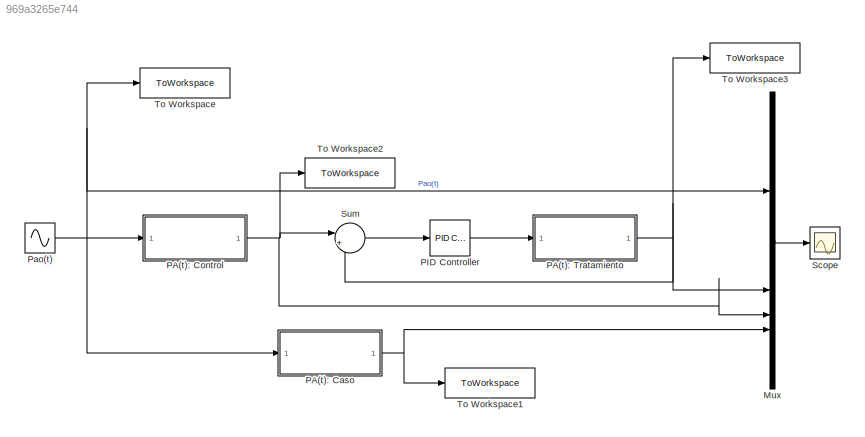
MODEL slx_969a3265e744
KIND model
CONFIG AbsTol = auto
CONFIG EnableMultiTasking = off
CONFIG FixedStep = auto
CONFIG MaxStep = auto
CONFIG MinStep = auto
CONFIG RelTol = 1e-3
CONFIG SampleTimeConstraint = Unconstrained
CONFIG SolverName = VariableStepAuto
CONFIG StartTime = 0.0
CONFIG StopTime = 10
BLOCK [Mux] Mux
  DisplayOption = bar
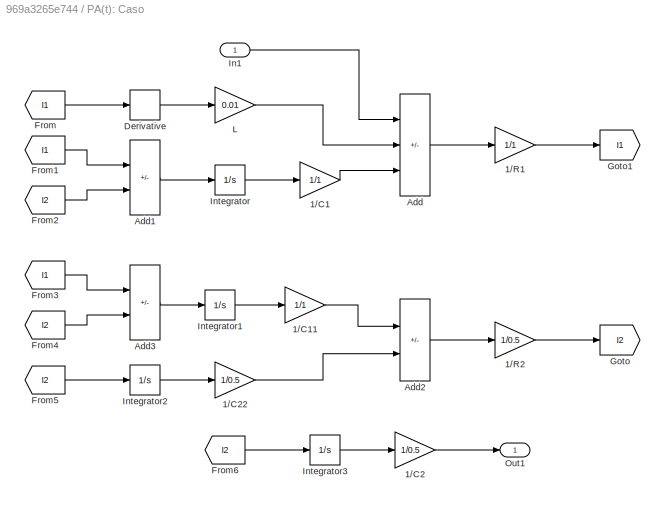
BLOCK [SubSystem] PA(t): Caso
BLOCK [Gain] PA(t): Caso/1//C1
  Gain = 1/1
BLOCK [Gain] PA(t): Caso/1//C11
  Gain = 1/1
BLOCK [Gain] PA(t): Caso/1//C2
  Gain = 1/0.5
BLOCK [Gain] PA(t): Caso/1//C22
  Gain = 1/0.5
BLOCK [Gain] PA(t): Caso/1//R1
  Gain = 1/1
BLOCK [Gain] PA(t): Caso/1//R2
  Gain = 1/0.5
BLOCK [Sum] PA(t): Caso/Add
  IconShape = rectangular
  Inputs = +--
BLOCK [Sum] PA(t): Caso/Add1
  IconShape = rectangular
  Inputs = +-
BLOCK [Sum] PA(t): Caso/Add2
  IconShape = rectangular
  Inputs = +-
BLOCK [Sum] PA(t): Caso/Add3
  IconShape = rectangular
  Inputs = +-
BLOCK [Derivative] PA(t): Caso/Derivative
BLOCK [From] PA(t): Caso/From
  GotoTag = I1
BLOCK [From] PA(t): Caso/From1
  GotoTag = I1
BLOCK [From] PA(t): Caso/From2
  GotoTag = I2
BLOCK [From] PA(t): Caso/From3
  GotoTag = I1
BLOCK [From] PA(t): Caso/From4
  GotoTag = I2
BLOCK [From] PA(t): Caso/From5
  GotoTag = I2
BLOCK [From] PA(t): Caso/From6
  GotoTag = I2
BLOCK [Goto] PA(t): Caso/Goto
  GotoTag = I2
BLOCK [Goto] PA(t): Caso/Goto1
  GotoTag = I1
BLOCK [Inport] PA(t): Caso/In1
BLOCK [Integrator] PA(t): Caso/Integrator
BLOCK [Integrator] PA(t): Caso/Integrator1
BLOCK [Integrator] PA(t): Caso/Integrator2
BLOCK [Integrator] PA(t): Caso/Integrator3
BLOCK [Gain] PA(t): Caso/L
  Gain = 0.01
BLOCK [Outport] PA(t): Caso/Out1
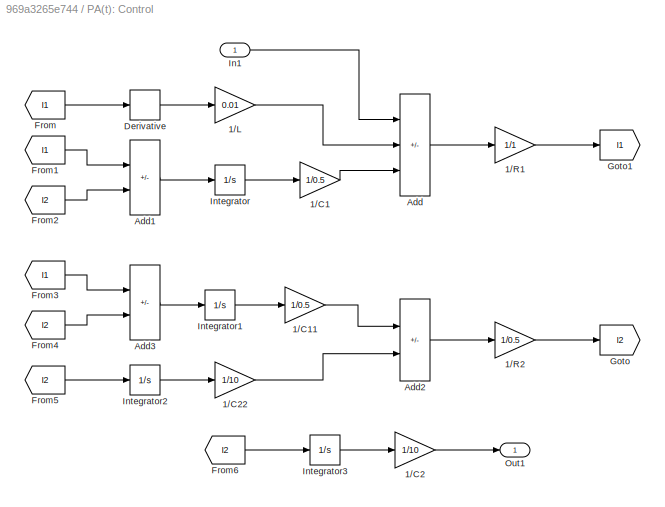
BLOCK [SubSystem] PA(t): Control
BLOCK [Gain] PA(t): Control/1//C1
  Gain = 1/0.5
BLOCK [Gain] PA(t): Control/1//C11
  Gain = 1/0.5
BLOCK [Gain] PA(t): Control/1//C2
  Gain = 1/10
BLOCK [Gain] PA(t): Control/1//C22
  Gain = 1/10
BLOCK [Gain] PA(t): Control/1//L
  Gain = 0.01
BLOCK [Gain] PA(t): Control/1//R1
  Gain = 1/1
BLOCK [Gain] PA(t): Control/1//R2
  Gain = 1/0.5
BLOCK [Sum] PA(t): Control/Add
  IconShape = rectangular
  Inputs = +--
BLOCK [Sum] PA(t): Control/Add1
  IconShape = rectangular
  Inputs = +-
BLOCK [Sum] PA(t): Control/Add2
  IconShape = rectangular
  Inputs = +-
BLOCK [Sum] PA(t): Control/Add3
  IconShape = rectangular
  Inputs = +-
BLOCK [Derivative] PA(t): Control/Derivative
BLOCK [From] PA(t): Control/From
  GotoTag = I1
BLOCK [From] PA(t): Control/From1
  GotoTag = I1
BLOCK [From] PA(t): Control/From2
  GotoTag = I2
BLOCK [From] PA(t): Control/From3
  GotoTag = I1
BLOCK [From] PA(t): Control/From4
  GotoTag = I2
BLOCK [From] PA(t): Control/From5
  GotoTag = I2
BLOCK [From] PA(t): Control/From6
  GotoTag = I2
BLOCK [Goto] PA(t): Control/Goto
  GotoTag = I2
BLOCK [Goto] PA(t): Control/Goto1
  GotoTag = I1
BLOCK [Inport] PA(t): Control/In1
BLOCK [Integrator] PA(t): Control/Integrator
BLOCK [Integrator] PA(t): Control/Integrator1
BLOCK [Integrator] PA(t): Control/Integrator2
BLOCK [Integrator] PA(t): Control/Integrator3
BLOCK [Outport] PA(t): Control/Out1
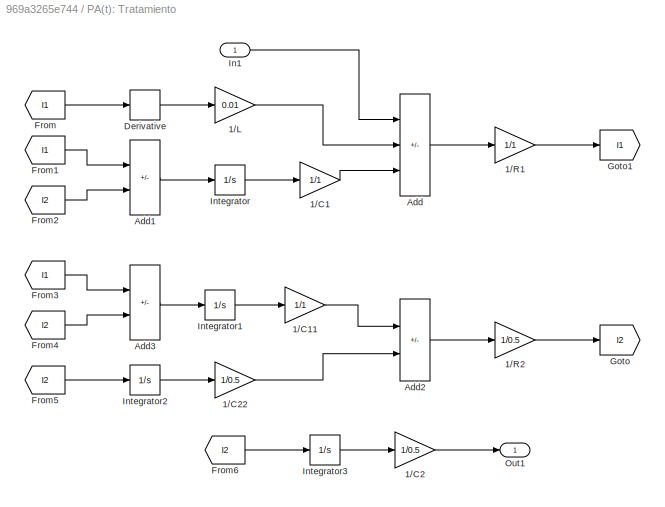
BLOCK [SubSystem] PA(t): Tratamiento
BLOCK [Gain] PA(t): Tratamiento/1//C1
  Gain = 1/1
BLOCK [Gain] PA(t): Tratamiento/1//C11
  Gain = 1/1
BLOCK [Gain] PA(t): Tratamiento/1//C2
  Gain = 1/0.5
BLOCK [Gain] PA(t): Tratamiento/1//C22
  Gain = 1/0.5
BLOCK [Gain] PA(t): Tratamiento/1//L
  Gain = 0.01
BLOCK [Gain] PA(t): Tratamiento/1//R1
  Gain = 1/1
BLOCK [Gain] PA(t): Tratamiento/1//R2
  Gain = 1/0.5
BLOCK [Sum] PA(t): Tratamiento/Add
  IconShape = rectangular
  Inputs = +--
BLOCK [Sum] PA(t): Tratamiento/Add1
  IconShape = rectangular
  Inputs = +-
BLOCK [Sum] PA(t): Tratamiento/Add2
  IconShape = rectangular
  Inputs = +-
BLOCK [Sum] PA(t): Tratamiento/Add3
  IconShape = rectangular
  Inputs = +-
BLOCK [Derivative] PA(t): Tratamiento/Derivative
BLOCK [From] PA(t): Tratamiento/From
  GotoTag = I1
BLOCK [From] PA(t): Tratamiento/From1
  GotoTag = I1
BLOCK [From] PA(t): Tratamiento/From2
  GotoTag = I2
BLOCK [From] PA(t): Tratamiento/From3
  GotoTag = I1
BLOCK [From] PA(t): Tratamiento/From4
  GotoTag = I2
BLOCK [From] PA(t): Tratamiento/From5
  GotoTag = I2
BLOCK [From] PA(t): Tratamiento/From6
  GotoTag = I2
BLOCK [Goto] PA(t): Tratamiento/Goto
  GotoTag = I2
BLOCK [Goto] PA(t): Tratamiento/Goto1
  GotoTag = I1
BLOCK [Inport] PA(t): Tratamiento/In1
BLOCK [Integrator] PA(t): Tratamiento/Integrator
BLOCK [Integrator] PA(t): Tratamiento/Integrator1
BLOCK [Integrator] PA(t): Tratamiento/Integrator2
BLOCK [Integrator] PA(t): Tratamiento/Integrator3
BLOCK [Outport] PA(t): Tratamiento/Out1
BLOCK [Reference] PID Controller  REF=slpidlib/PID Controller
  SourceBlock = slpidlib/PID Controller
  SourceType = PID 1dof
BLOCK [Sin] Pao(t)
  Frequency = pi/2
  SampleTime = 0.001
BLOCK [Scope] Scope
  Floating = off
  NumInputPorts = 1
  ScopeSpecificationString = Simulink.scopes.TimeScopeBlockCfg('CurrentConfiguration', extmgr.ConfigurationSet(extmgr.Configuration('Core','General UI',true,'FigureColor',[1 1 1]),extmgr.Configuration('Core','Source UI',true),extmgr.Configuration('Sources','WiredSimulink',true),extmgr.Configuration('Visuals','Time Domain',true,'SerializedDisplays',{struct('MinYLimReal','-1.2','MaxYLimReal','1.2','YLabelReal','Voltaje (V)','Mi...<+2313ch>
BLOCK [Sum] Sum
  Inputs = |+-
BLOCK [ToWorkspace] To Workspace
  FixptAsFi = on
  MaxDataPoints = inf
  SampleTime = -1
  VariableName = Pao
BLOCK [ToWorkspace] To Workspace1
  FixptAsFi = on
  MaxDataPoints = inf
  SampleTime = -1
  VariableName = PAy
BLOCK [ToWorkspace] To Workspace2
  FixptAsFi = on
  MaxDataPoints = inf
  SampleTime = -1
  VariableName = PAx
BLOCK [ToWorkspace] To Workspace3
  FixptAsFi = on
  MaxDataPoints = inf
  SampleTime = -1
  VariableName = PAz
LINE Mux:1 -> Scope:1
LINE PA(t): Caso/1//C11:1 -> PA(t): Caso/Add2:1
LINE PA(t): Caso/1//C1:1 -> PA(t): Caso/Add:3
LINE PA(t): Caso/1//C22:1 -> PA(t): Caso/Add2:2
LINE PA(t): Caso/1//C2:1 -> PA(t): Caso/Out1:1
LINE PA(t): Caso/1//R1:1 -> PA(t): Caso/Goto1:1
LINE PA(t): Caso/1//R2:1 -> PA(t): Caso/Goto:1
LINE PA(t): Caso/Add1:1 -> PA(t): Caso/Integrator:1
LINE PA(t): Caso/Add2:1 -> PA(t): Caso/1//R2:1
LINE PA(t): Caso/Add3:1 -> PA(t): Caso/Integrator1:1
LINE PA(t): Caso/Add:1 -> PA(t): Caso/1//R1:1
LINE PA(t): Caso/Derivative:1 -> PA(t): Caso/L:1
LINE PA(t): Caso/From1:1 -> PA(t): Caso/Add1:1
LINE PA(t): Caso/From2:1 -> PA(t): Caso/Add1:2
LINE PA(t): Caso/From3:1 -> PA(t): Caso/Add3:1
LINE PA(t): Caso/From4:1 -> PA(t): Caso/Add3:2
LINE PA(t): Caso/From5:1 -> PA(t): Caso/Integrator2:1
LINE PA(t): Caso/From6:1 -> PA(t): Caso/Integrator3:1
LINE PA(t): Caso/From:1 -> PA(t): Caso/Derivative:1
LINE PA(t): Caso/In1:1 -> PA(t): Caso/Add:1
LINE PA(t): Caso/Integrator1:1 -> PA(t): Caso/1//C11:1
LINE PA(t): Caso/Integrator2:1 -> PA(t): Caso/1//C22:1
LINE PA(t): Caso/Integrator3:1 -> PA(t): Caso/1//C2:1
LINE PA(t): Caso/Integrator:1 -> PA(t): Caso/1//C1:1
LINE PA(t): Caso/L:1 -> PA(t): Caso/Add:2
NET PA(t): Caso:1 -> Mux:4, To Workspace1:1
LINE PA(t): Control/1//C11:1 -> PA(t): Control/Add2:1
LINE PA(t): Control/1//C1:1 -> PA(t): Control/Add:3
LINE PA(t): Control/1//C22:1 -> PA(t): Control/Add2:2
LINE PA(t): Control/1//C2:1 -> PA(t): Control/Out1:1
LINE PA(t): Control/1//L:1 -> PA(t): Control/Add:2
LINE PA(t): Control/1//R1:1 -> PA(t): Control/Goto1:1
LINE PA(t): Control/1//R2:1 -> PA(t): Control/Goto:1
LINE PA(t): Control/Add1:1 -> PA(t): Control/Integrator:1
LINE PA(t): Control/Add2:1 -> PA(t): Control/1//R2:1
LINE PA(t): Control/Add3:1 -> PA(t): Control/Integrator1:1
LINE PA(t): Control/Add:1 -> PA(t): Control/1//R1:1
LINE PA(t): Control/Derivative:1 -> PA(t): Control/1//L:1
LINE PA(t): Control/From1:1 -> PA(t): Control/Add1:1
LINE PA(t): Control/From2:1 -> PA(t): Control/Add1:2
LINE PA(t): Control/From3:1 -> PA(t): Control/Add3:1
LINE PA(t): Control/From4:1 -> PA(t): Control/Add3:2
LINE PA(t): Control/From5:1 -> PA(t): Control/Integrator2:1
LINE PA(t): Control/From6:1 -> PA(t): Control/Integrator3:1
LINE PA(t): Control/From:1 -> PA(t): Control/Derivative:1
LINE PA(t): Control/In1:1 -> PA(t): Control/Add:1
LINE PA(t): Control/Integrator1:1 -> PA(t): Control/1//C11:1
LINE PA(t): Control/Integrator2:1 -> PA(t): Control/1//C22:1
LINE PA(t): Control/Integrator3:1 -> PA(t): Control/1//C2:1
LINE PA(t): Control/Integrator:1 -> PA(t): Control/1//C1:1
NET PA(t): Control:1 -> Mux:3, Sum:1, To Workspace2:1
LINE PA(t): Tratamiento/1//C11:1 -> PA(t): Tratamiento/Add2:1
LINE PA(t): Tratamiento/1//C1:1 -> PA(t): Tratamiento/Add:3
LINE PA(t): Tratamiento/1//C22:1 -> PA(t): Tratamiento/Add2:2
LINE PA(t): Tratamiento/1//C2:1 -> PA(t): Tratamiento/Out1:1
LINE PA(t): Tratamiento/1//L:1 -> PA(t): Tratamiento/Add:2
LINE PA(t): Tratamiento/1//R1:1 -> PA(t): Tratamiento/Goto1:1
LINE PA(t): Tratamiento/1//R2:1 -> PA(t): Tratamiento/Goto:1
LINE PA(t): Tratamiento/Add1:1 -> PA(t): Tratamiento/Integrator:1
LINE PA(t): Tratamiento/Add2:1 -> PA(t): Tratamiento/1//R2:1
LINE PA(t): Tratamiento/Add3:1 -> PA(t): Tratamiento/Integrator1:1
LINE PA(t): Tratamiento/Add:1 -> PA(t): Tratamiento/1//R1:1
LINE PA(t): Tratamiento/Derivative:1 -> PA(t): Tratamiento/1//L:1
LINE PA(t): Tratamiento/From1:1 -> PA(t): Tratamiento/Add1:1
LINE PA(t): Tratamiento/From2:1 -> PA(t): Tratamiento/Add1:2
LINE PA(t): Tratamiento/From3:1 -> PA(t): Tratamiento/Add3:1
LINE PA(t): Tratamiento/From4:1 -> PA(t): Tratamiento/Add3:2
LINE PA(t): Tratamiento/From5:1 -> PA(t): Tratamiento/Integrator2:1
LINE PA(t): Tratamiento/From6:1 -> PA(t): Tratamiento/Integrator3:1
LINE PA(t): Tratamiento/From:1 -> PA(t): Tratamiento/Derivative:1
LINE PA(t): Tratamiento/In1:1 -> PA(t): Tratamiento/Add:1
LINE PA(t): Tratamiento/Integrator1:1 -> PA(t): Tratamiento/1//C11:1
LINE PA(t): Tratamiento/Integrator2:1 -> PA(t): Tratamiento/1//C22:1
LINE PA(t): Tratamiento/Integrator3:1 -> PA(t): Tratamiento/1//C2:1
LINE PA(t): Tratamiento/Integrator:1 -> PA(t): Tratamiento/1//C1:1
NET PA(t): Tratamiento:1 -> Mux:2, Sum:2, To Workspace3:1
LINE PID Controller:1 -> PA(t): Tratamiento:1
NET Pao(t):1 -> Mux:1, PA(t): Caso:1, PA(t): Control:1, To Workspace:1
LINE Sum:1 -> PID Controller:1
note: NET lines group one-source signal fan-out (src -> all destinations, sorted); 1:1 wires keep LINE
